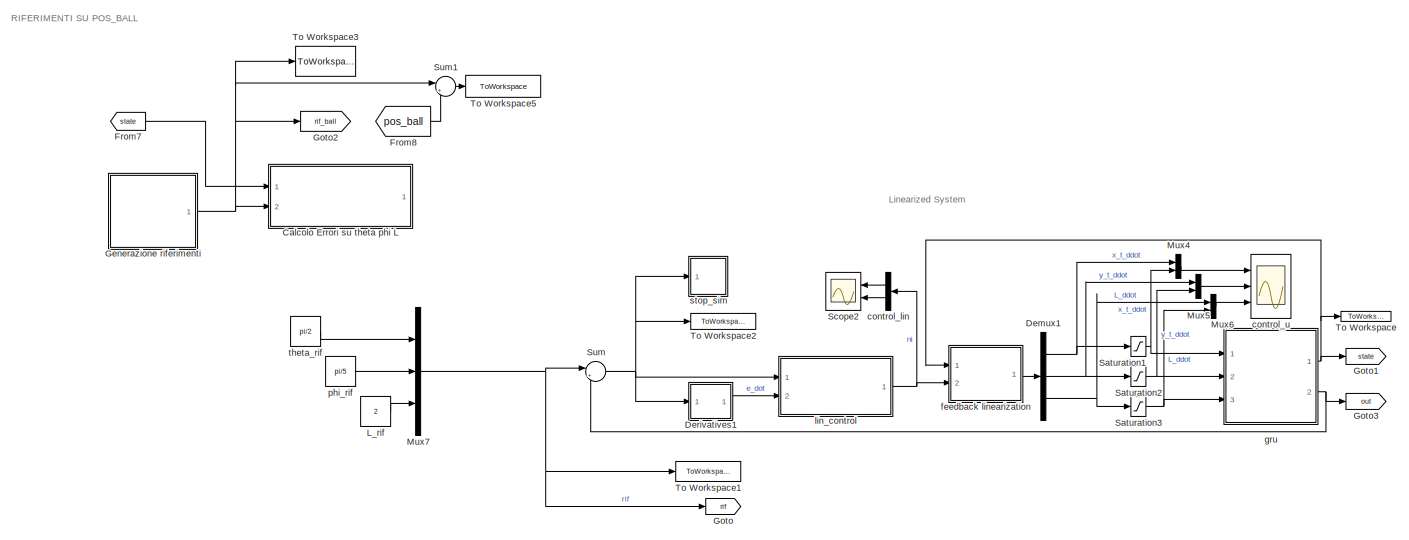
[diagram: root canvas - part 1/2, top left region]
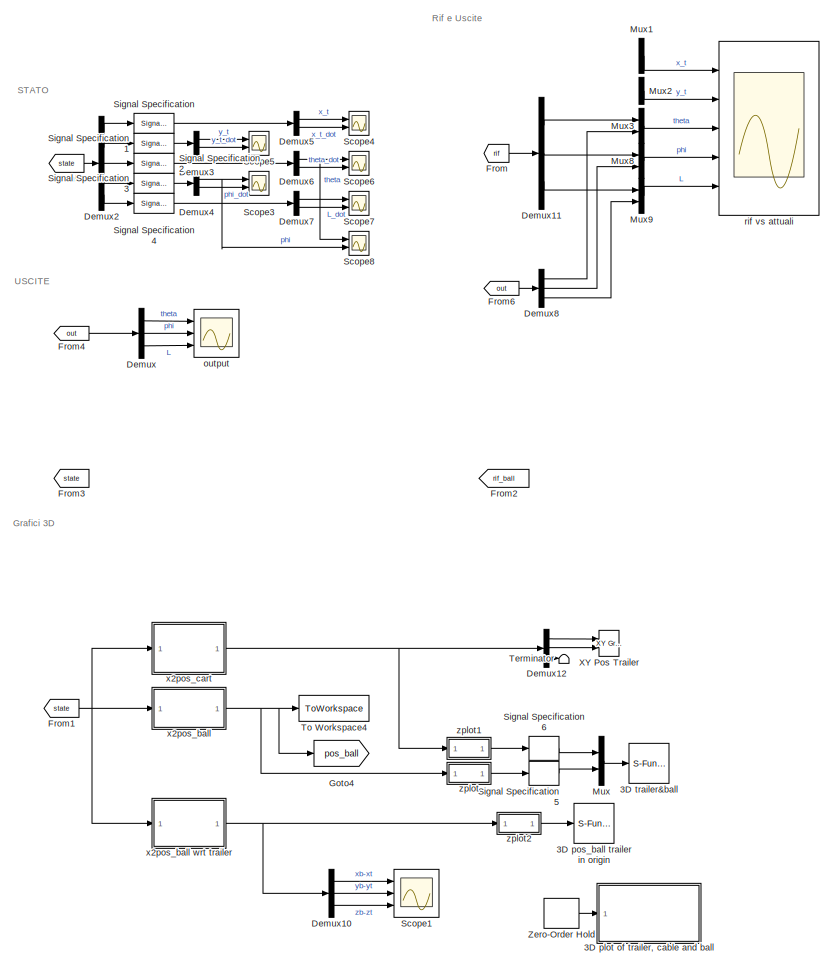
[diagram: root canvas - part 2/2, right side, full height]
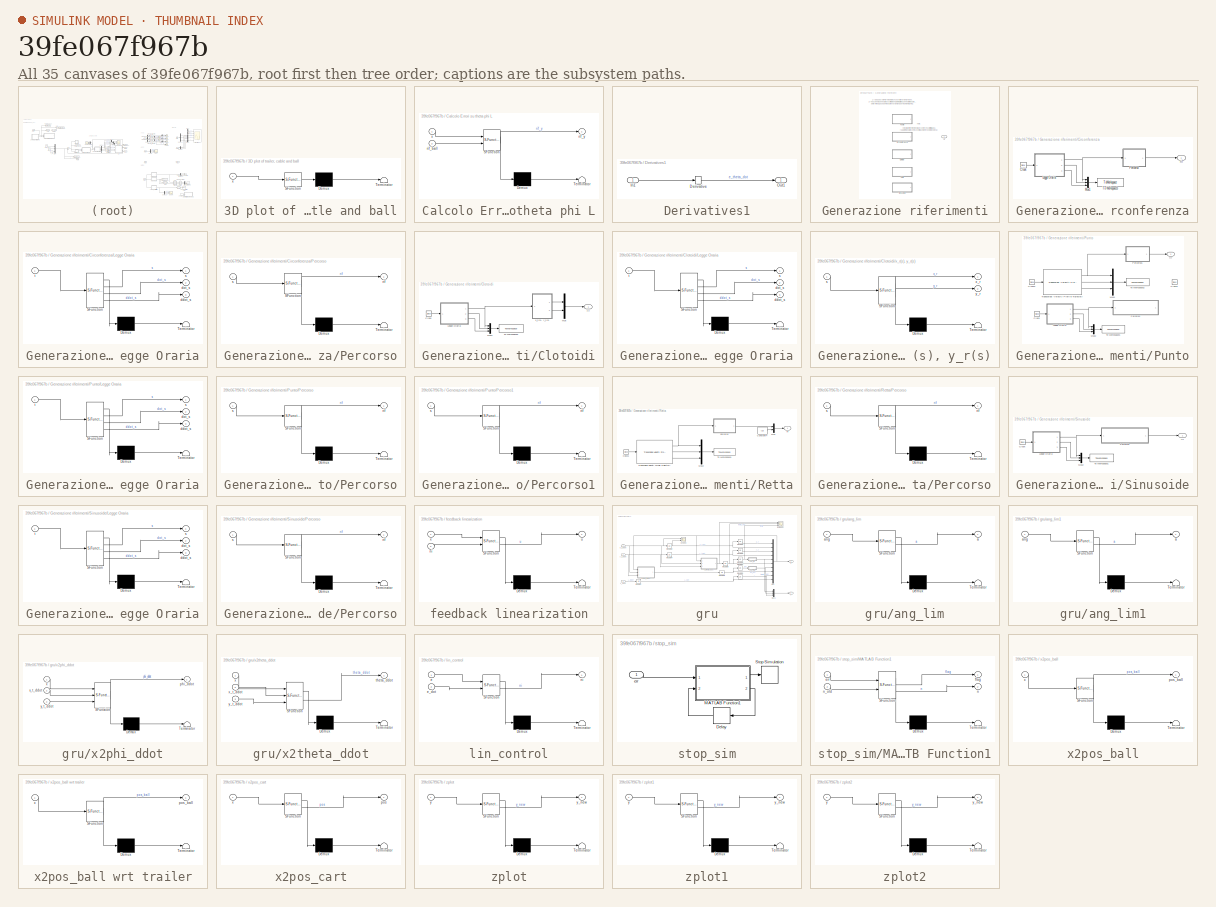
[diagram: thumbnail index - all 35 canvases of the model, root first then tree order]
MODEL slx_39fe067f967b
KIND model
CONFIG AbsTol = auto
CONFIG EnableMultiTasking = off
CONFIG FixedStep = 0.001
CONFIG InitFcn = init_gru
CONFIG MaxStep = 0.01
CONFIG MinStep = auto
CONFIG RelTol = 1e-3
CONFIG SampleTimeConstraint = Unconstrained
CONFIG Solver = FixedStepAuto
CONFIG SolverName = FixedStepAuto
CONFIG StartTime = 0.0
CONFIG StopFcn = %stop_gru
CONFIG StopTime = Inf
BLOCK [SubSystem] 3D plot of trailer, cable and ball
  Commented = on
  ErrorFcn = Stateflow.Translate.translate
  PermitHierarchicalResolution = ExplicitOnly
  Ports = [1]
  RequestExecContextInheritance = off
  SFBlockType = MATLAB Function
  TreatAsAtomicUnit = on
BLOCK [Demux] 3D plot of trailer, cable and ball/ Demux 
  Outputs = 1
  Ports = [1, 1]
BLOCK [S-Function] 3D plot of trailer, cable and ball/ SFunction 
  EnableBusSupport = on
  FunctionName = sf_sfun
  Parameters = z_t
  PortCounts = [1 1]
  Ports = [1, 1]
  SFcnIsStateOwnerBlock = off
  SFunctionDeploymentMode = off
  Tag = Stateflow S-Function 22
BLOCK [Terminator] 3D plot of trailer, cable and ball/ Terminator 
BLOCK [Inport] 3D plot of trailer, cable and ball/x
BLOCK [S-Function] 3D pos_ball trailer in origin
  CopyFcn = if exist('sfun3d','file'), sfun3d([],[],[],'CopyBlock'); end
  DeleteFcn = if exist('sfun3d','file'), sfun3d([],[],[],'DeleteBlock'); end
  EnableBusSupport = off
  FunctionName = sfun3d
  LoadFcn = if exist('sfun3d','file'), sfun3d([],[],[],'LoadBlock'); end
  NameChangeFcn = if exist('sfun3d','file'), sfun3d([],[],[],'NameChange'); end
  Parameters = ax,T,np,cp,gd,ls,mk,mx,hd,tb
  Ports = [1]
  SFcnIsStateOwnerBlock = off
  SFunctionDeploymentMode = off
BLOCK [S-Function] 3D trailer&ball
  CopyFcn = if exist('sfun3d','file'), sfun3d([],[],[],'CopyBlock'); end
  DeleteFcn = if exist('sfun3d','file'), sfun3d([],[],[],'DeleteBlock'); end
  EnableBusSupport = off
  FunctionName = sfun3d
  LoadFcn = if exist('sfun3d','file'), sfun3d([],[],[],'LoadBlock'); end
  NameChangeFcn = if exist('sfun3d','file'), sfun3d([],[],[],'NameChange'); end
  Parameters = ax,T,np,cp,gd,ls,mk,mx,hd,tb
  Ports = [1]
  SFcnIsStateOwnerBlock = off
  SFunctionDeploymentMode = off
BLOCK [SubSystem] Calcolo Errori su theta phi L
  ErrorFcn = Stateflow.Translate.translate
  PermitHierarchicalResolution = ExplicitOnly
  Ports = [2, 1]
  RequestExecContextInheritance = off
  SFBlockType = MATLAB Function
  TreatAsAtomicUnit = on
BLOCK [Demux] Calcolo Errori su theta phi L/ Demux 
  Outputs = 1
  Ports = [1, 1]
BLOCK [S-Function] Calcolo Errori su theta phi L/ SFunction 
  EnableBusSupport = on
  FunctionName = sf_sfun
  Parameters = z_t
  PortCounts = [2 2]
  Ports = [2, 2]
  SFcnIsStateOwnerBlock = off
  SFunctionDeploymentMode = off
  Tag = Stateflow S-Function 33
BLOCK [Terminator] Calcolo Errori su theta phi L/ Terminator 
BLOCK [Inport] Calcolo Errori su theta phi L/rif_ball
  Port = 2
BLOCK [Outport] Calcolo Errori su theta phi L/rif_y
BLOCK [Inport] Calcolo Errori su theta phi L/x
BLOCK [Demux] Demux
  Outputs = 3
  Ports = [1, 3]
BLOCK [Demux] Demux1
  Outputs = 3
  Ports = [1, 3]
BLOCK [Demux] Demux10
  Outputs = 3
  Ports = [1, 3]
BLOCK [Demux] Demux11
  Outputs = 3
  Ports = [1, 3]
BLOCK [Demux] Demux12
  Outputs = 3
  Ports = [1, 3]
BLOCK [Demux] Demux2
  Outputs = 5
  Ports = [1, 5]
BLOCK [Demux] Demux3
  Outputs = 2
  Ports = [1, 2]
BLOCK [Demux] Demux4
  Outputs = 2
  Ports = [1, 2]
BLOCK [Demux] Demux5
  Outputs = 2
  Ports = [1, 2]
BLOCK [Demux] Demux6
  Outputs = 2
  Ports = [1, 2]
BLOCK [Demux] Demux7
  Outputs = 2
  Ports = [1, 2]
BLOCK [Demux] Demux8
  Outputs = 3
  Ports = [1, 3]
BLOCK [SubSystem] Derivatives1
  Ports = [1, 1]
  RequestExecContextInheritance = off
BLOCK [Derivative] Derivatives1/Derivative
  CoefficientInTFapproximation = 1e10
BLOCK [Inport] Derivatives1/In1
BLOCK [Outport] Derivatives1/Out1
BLOCK [From] From
  GotoTag = rif
BLOCK [From] From1
  GotoTag = state
BLOCK [From] From2
  GotoTag = rif_ball
BLOCK [From] From3
  GotoTag = state
BLOCK [From] From4
  GotoTag = out
BLOCK [From] From5
  GotoTag = state
BLOCK [From] From6
  GotoTag = out
BLOCK [From] From7
  GotoTag = state
BLOCK [From] From8
  GotoTag = pos_ball
BLOCK [SubSystem] Generazione riferimenti
  Ports = [0, 1]
  RequestExecContextInheritance = off
  Variant = on
BLOCK [SubSystem] Generazione riferimenti/Circonferenza
  Ports = [0, 1]
  RequestExecContextInheritance = off
  VariantControl = Circonferenza
BLOCK [Clock] Generazione riferimenti/Circonferenza/Clock
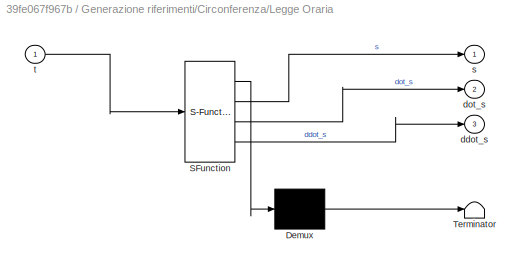
BLOCK [SubSystem] Generazione riferimenti/Circonferenza/Legge Oraria
  ErrorFcn = Stateflow.Translate.translate
  PermitHierarchicalResolution = ExplicitOnly
  Ports = [1, 3]
  RequestExecContextInheritance = off
  SFBlockType = MATLAB Function
  TreatAsAtomicUnit = on
BLOCK [Demux] Generazione riferimenti/Circonferenza/Legge Oraria/ Demux 
  Outputs = 1
  Ports = [1, 1]
BLOCK [S-Function] Generazione riferimenti/Circonferenza/Legge Oraria/ SFunction 
  EnableBusSupport = on
  FunctionName = sf_sfun
  Parameters = v_rif
  PortCounts = [1 4]
  Ports = [1, 4]
  SFcnIsStateOwnerBlock = off
  SFunctionDeploymentMode = off
  Tag = Stateflow S-Function 9
BLOCK [Terminator] Generazione riferimenti/Circonferenza/Legge Oraria/ Terminator 
BLOCK [Outport] Generazione riferimenti/Circonferenza/Legge Oraria/ddot_s
  Port = 3
BLOCK [Outport] Generazione riferimenti/Circonferenza/Legge Oraria/dot_s
  Port = 2
BLOCK [Outport] Generazione riferimenti/Circonferenza/Legge Oraria/s
BLOCK [Inport] Generazione riferimenti/Circonferenza/Legge Oraria/t
BLOCK [Mux] Generazione riferimenti/Circonferenza/Mux1
  DisplayOption = bar
  Inputs = 3
  Ports = [3, 1]
BLOCK [SubSystem] Generazione riferimenti/Circonferenza/Percorso
  ErrorFcn = Stateflow.Translate.translate
  PermitHierarchicalResolution = ExplicitOnly
  Ports = [1, 1]
  RequestExecContextInheritance = off
  SFBlockType = MATLAB Function
  TreatAsAtomicUnit = on
BLOCK [Demux] Generazione riferimenti/Circonferenza/Percorso/ Demux 
  Outputs = 1
  Ports = [1, 1]
BLOCK [S-Function] Generazione riferimenti/Circonferenza/Percorso/ SFunction 
  EnableBusSupport = on
  FunctionName = sf_sfun
  Parameters = centro,v_r
  PortCounts = [1 2]
  Ports = [1, 2]
  SFcnIsStateOwnerBlock = off
  SFunctionDeploymentMode = off
  Tag = Stateflow S-Function 10
BLOCK [Terminator] Generazione riferimenti/Circonferenza/Percorso/ Terminator 
BLOCK [Outport] Generazione riferimenti/Circonferenza/Percorso/rif
BLOCK [Inport] Generazione riferimenti/Circonferenza/Percorso/s
BLOCK [ToWorkspace] Generazione riferimenti/Circonferenza/To Workspace3
  FixptAsFi = on
  MaxDataPoints = inf
  Ports = [1]
  SampleTime = -1
  SaveFormat = Timeseries
  VariableName = curv_coord
BLOCK [Outport] Generazione riferimenti/Circonferenza/rif
BLOCK [SubSystem] Generazione riferimenti/Clotoidi
  Ports = [0, 1]
  RequestExecContextInheritance = off
  VariantControl = Clotoidi
BLOCK [Clock] Generazione riferimenti/Clotoidi/Clock
BLOCK [SubSystem] Generazione riferimenti/Clotoidi/Legge Oraria
  ErrorFcn = Stateflow.Translate.translate
  PermitHierarchicalResolution = ExplicitOnly
  Ports = [1, 3]
  RequestExecContextInheritance = off
  SFBlockType = MATLAB Function
  TreatAsAtomicUnit = on
BLOCK [Demux] Generazione riferimenti/Clotoidi/Legge Oraria/ Demux 
  Outputs = 1
  Ports = [1, 1]
BLOCK [S-Function] Generazione riferimenti/Clotoidi/Legge Oraria/ SFunction 
  EnableBusSupport = on
  FunctionName = sf_sfun
  Parameters = v_rif
  PortCounts = [1 4]
  Ports = [1, 4]
  SFcnIsStateOwnerBlock = off
  SFunctionDeploymentMode = off
  Tag = Stateflow S-Function 7
BLOCK [Terminator] Generazione riferimenti/Clotoidi/Legge Oraria/ Terminator 
BLOCK [Outport] Generazione riferimenti/Clotoidi/Legge Oraria/ddot_s
  Port = 3
BLOCK [Outport] Generazione riferimenti/Clotoidi/Legge Oraria/dot_s
  Port = 2
BLOCK [Outport] Generazione riferimenti/Clotoidi/Legge Oraria/s
BLOCK [Inport] Generazione riferimenti/Clotoidi/Legge Oraria/t
BLOCK [Mux] Generazione riferimenti/Clotoidi/Mux
  DisplayOption = bar
  Inputs = 2
  Ports = [2, 1]
BLOCK [Mux] Generazione riferimenti/Clotoidi/Mux1
  DisplayOption = bar
  Inputs = 3
  Ports = [3, 1]
BLOCK [ToWorkspace] Generazione riferimenti/Clotoidi/To Workspace3
  FixptAsFi = on
  MaxDataPoints = inf
  Ports = [1]
  SampleTime = -1
  SaveFormat = Timeseries
  VariableName = curv_coord
BLOCK [Outport] Generazione riferimenti/Clotoidi/rif
BLOCK [SubSystem] Generazione riferimenti/Clotoidi/x_r(s), y_r(s)
  ErrorFcn = Stateflow.Translate.translate
  PermitHierarchicalResolution = ExplicitOnly
  Ports = [1, 2]
  RequestExecContextInheritance = off
  SFBlockType = MATLAB Function
  TreatAsAtomicUnit = on
BLOCK [Demux] Generazione riferimenti/Clotoidi/x_r(s), y_r(s)/ Demux 
  Outputs = 1
  Ports = [1, 1]
BLOCK [S-Function] Generazione riferimenti/Clotoidi/x_r(s), y_r(s)/ SFunction 
  EnableBusSupport = on
  FunctionName = sf_sfun
  Parameters = Lsofar,Lsofarclot,Ltot,indexclot,n_p,theta_rette,xp,yp
  PortCounts = [1 3]
  Ports = [1, 3]
  SFcnIsStateOwnerBlock = off
  SFunctionDeploymentMode = off
  Tag = Stateflow S-Function 13
BLOCK [Terminator] Generazione riferimenti/Clotoidi/x_r(s), y_r(s)/ Terminator 
BLOCK [Inport] Generazione riferimenti/Clotoidi/x_r(s), y_r(s)/s
BLOCK [Outport] Generazione riferimenti/Clotoidi/x_r(s), y_r(s)/x_r
  VectorParamsAs1DForOutWhenUnconnected = off
BLOCK [Outport] Generazione riferimenti/Clotoidi/x_r(s), y_r(s)/y_r
  Port = 2
  VectorParamsAs1DForOutWhenUnconnected = off
BLOCK [SubSystem] Generazione riferimenti/Punto
  Ports = [0, 1]
  RequestExecContextInheritance = off
  VariantControl = Punto
BLOCK [Clock] Generazione riferimenti/Punto/Clock
  Commented = on
BLOCK [Clock] Generazione riferimenti/Punto/Clock1
  Commented = on
BLOCK [Clock] Generazione riferimenti/Punto/Clock2
BLOCK [SubSystem] Generazione riferimenti/Punto/Legge Oraria
  Commented = on
  ErrorFcn = Stateflow.Translate.translate
  PermitHierarchicalResolution = ExplicitOnly
  Ports = [1, 3]
  RequestExecContextInheritance = off
  SFBlockType = MATLAB Function
  TreatAsAtomicUnit = on
BLOCK [Demux] Generazione riferimenti/Punto/Legge Oraria/ Demux 
  Outputs = 1
  Ports = [1, 1]
BLOCK [S-Function] Generazione riferimenti/Punto/Legge Oraria/ SFunction 
  EnableBusSupport = on
  FunctionName = sf_sfun
  Parameters = v_rif
  PortCounts = [1 4]
  Ports = [1, 4]
  SFcnIsStateOwnerBlock = off
  SFunctionDeploymentMode = off
  Tag = Stateflow S-Function 3
BLOCK [Terminator] Generazione riferimenti/Punto/Legge Oraria/ Terminator 
BLOCK [Outport] Generazione riferimenti/Punto/Legge Oraria/ddot_s
  Port = 3
BLOCK [Outport] Generazione riferimenti/Punto/Legge Oraria/dot_s
  Port = 2
BLOCK [Outport] Generazione riferimenti/Punto/Legge Oraria/s
BLOCK [Inport] Generazione riferimenti/Punto/Legge Oraria/t
BLOCK [Mux] Generazione riferimenti/Punto/Mux1
  DisplayOption = bar
  Inputs = 3
  Ports = [3, 1]
BLOCK [Mux] Generazione riferimenti/Punto/Mux2
  Commented = on
  DisplayOption = bar
  Inputs = 3
  Ports = [3, 1]
BLOCK [SubSystem] Generazione riferimenti/Punto/Percorso
  Commented = on
  ErrorFcn = Stateflow.Translate.translate
  PermitHierarchicalResolution = ExplicitOnly
  Ports = [1, 1]
  RequestExecContextInheritance = off
  SFBlockType = MATLAB Function
  TreatAsAtomicUnit = on
BLOCK [Demux] Generazione riferimenti/Punto/Percorso/ Demux 
  Outputs = 1
  Ports = [1, 1]
BLOCK [S-Function] Generazione riferimenti/Punto/Percorso/ SFunction 
  EnableBusSupport = on
  FunctionName = sf_sfun
  Parameters = x_M_finale,x_M_iniziale,y_M_finale,y_M_iniziale
  PortCounts = [1 2]
  Ports = [1, 2]
  SFcnIsStateOwnerBlock = off
  SFunctionDeploymentMode = off
  Tag = Stateflow S-Function 6
BLOCK [Terminator] Generazione riferimenti/Punto/Percorso/ Terminator 
BLOCK [Outport] Generazione riferimenti/Punto/Percorso/rif
BLOCK [Inport] Generazione riferimenti/Punto/Percorso/s
BLOCK [SubSystem] Generazione riferimenti/Punto/Percorso1
  ErrorFcn = Stateflow.Translate.translate
  PermitHierarchicalResolution = ExplicitOnly
  Ports = [1, 1]
  RequestExecContextInheritance = off
  SFBlockType = MATLAB Function
  TreatAsAtomicUnit = on
BLOCK [Demux] Generazione riferimenti/Punto/Percorso1/ Demux 
  Outputs = 1
  Ports = [1, 1]
BLOCK [S-Function] Generazione riferimenti/Punto/Percorso1/ SFunction 
  EnableBusSupport = on
  FunctionName = sf_sfun
  Parameters = dir_retta,x_b_iniziale,y_b_iniziale,z_b_iniziale
  PortCounts = [1 2]
  Ports = [1, 2]
  SFcnIsStateOwnerBlock = off
  SFunctionDeploymentMode = off
  Tag = Stateflow S-Function 28
BLOCK [Terminator] Generazione riferimenti/Punto/Percorso1/ Terminator 
BLOCK [Outport] Generazione riferimenti/Punto/Percorso1/rif
BLOCK [Inport] Generazione riferimenti/Punto/Percorso1/s
BLOCK [ToWorkspace] Generazione riferimenti/Punto/To Workspace1
  Commented = on
  FixptAsFi = on
  MaxDataPoints = inf
  Ports = [1]
  SampleTime = -1
  SaveFormat = Timeseries
  VariableName = curv_coord
BLOCK [ToWorkspace] Generazione riferimenti/Punto/To Workspace2
  FixptAsFi = on
  MaxDataPoints = inf
  Ports = [1]
  SampleTime = -1
  SaveFormat = Timeseries
  VariableName = curv_coord1
BLOCK [Reference] Generazione riferimenti/Punto/Trapezoidal Velocity Profile Trajectory  REF=robotcorelib/Trapezoidal Velocity Profile Trajectory
  Ports = [1, 3]
  SourceBlock = robotcorelib/Trapezoidal Velocity Profile Trajectory
  SourceProductBaseCode = NV,RO,RR
  SourceType = robotics.slcore.internal.block.TrapVelTrajSys
BLOCK [Outport] Generazione riferimenti/Punto/rif
BLOCK [SubSystem] Generazione riferimenti/Retta
  Ports = [0, 1]
  RequestExecContextInheritance = off
  VariantControl = Retta
BLOCK [Clock] Generazione riferimenti/Retta/Clock1
BLOCK [Constant] Generazione riferimenti/Retta/Constant4
  Value = [2]
BLOCK [Mux] Generazione riferimenti/Retta/Mux
  DisplayOption = bar
  Inputs = 2
  Ports = [2, 1]
BLOCK [Mux] Generazione riferimenti/Retta/Mux2
  DisplayOption = bar
  Inputs = 3
  Ports = [3, 1]
BLOCK [SubSystem] Generazione riferimenti/Retta/Percorso
  ErrorFcn = Stateflow.Translate.translate
  PermitHierarchicalResolution = ExplicitOnly
  Ports = [1, 1]
  RequestExecContextInheritance = off
  SFBlockType = MATLAB Function
  TreatAsAtomicUnit = on
BLOCK [Demux] Generazione riferimenti/Retta/Percorso/ Demux 
  Outputs = 1
  Ports = [1, 1]
BLOCK [S-Function] Generazione riferimenti/Retta/Percorso/ SFunction 
  EnableBusSupport = on
  FunctionName = sf_sfun
  Parameters = dir_retta,x_b_iniziale,y_b_iniziale
  PortCounts = [1 2]
  Ports = [1, 2]
  SFcnIsStateOwnerBlock = off
  SFunctionDeploymentMode = off
  Tag = Stateflow S-Function 12
BLOCK [Terminator] Generazione riferimenti/Retta/Percorso/ Terminator 
BLOCK [Outport] Generazione riferimenti/Retta/Percorso/rif
BLOCK [Inport] Generazione riferimenti/Retta/Percorso/s
BLOCK [ToWorkspace] Generazione riferimenti/Retta/To Workspace1
  FixptAsFi = on
  MaxDataPoints = inf
  Ports = [1]
  SampleTime = -1
  SaveFormat = Timeseries
  VariableName = curv_coord
BLOCK [Reference] Generazione riferimenti/Retta/Trapezoidal Velocity Profile Trajectory  REF=robotcorelib/Trapezoidal Velocity Profile Trajectory
  Ports = [1, 3]
  SourceBlock = robotcorelib/Trapezoidal Velocity Profile Trajectory
  SourceProductBaseCode = NV,RO,RR
  SourceType = robotics.slcore.internal.block.TrapVelTrajSys
BLOCK [Outport] Generazione riferimenti/Retta/rif
BLOCK [SubSystem] Generazione riferimenti/Sinusoide
  Ports = [0, 1]
  RequestExecContextInheritance = off
  VariantControl = Sinusoide
BLOCK [Clock] Generazione riferimenti/Sinusoide/Clock
BLOCK [SubSystem] Generazione riferimenti/Sinusoide/Legge Oraria
  ErrorFcn = Stateflow.Translate.translate
  PermitHierarchicalResolution = ExplicitOnly
  Ports = [1, 3]
  RequestExecContextInheritance = off
  SFBlockType = MATLAB Function
  TreatAsAtomicUnit = on
BLOCK [Demux] Generazione riferimenti/Sinusoide/Legge Oraria/ Demux 
  Outputs = 1
  Ports = [1, 1]
BLOCK [S-Function] Generazione riferimenti/Sinusoide/Legge Oraria/ SFunction 
  EnableBusSupport = on
  FunctionName = sf_sfun
  Parameters = v_rif
  PortCounts = [1 4]
  Ports = [1, 4]
  SFcnIsStateOwnerBlock = off
  SFunctionDeploymentMode = off
  Tag = Stateflow S-Function 14
BLOCK [Terminator] Generazione riferimenti/Sinusoide/Legge Oraria/ Terminator 
BLOCK [Outport] Generazione riferimenti/Sinusoide/Legge Oraria/ddot_s
  Port = 3
BLOCK [Outport] Generazione riferimenti/Sinusoide/Legge Oraria/dot_s
  Port = 2
BLOCK [Outport] Generazione riferimenti/Sinusoide/Legge Oraria/s
BLOCK [Inport] Generazione riferimenti/Sinusoide/Legge Oraria/t
BLOCK [Mux] Generazione riferimenti/Sinusoide/Mux2
  DisplayOption = bar
  Inputs = 3
  Ports = [3, 1]
BLOCK [SubSystem] Generazione riferimenti/Sinusoide/Percorso
  ErrorFcn = Stateflow.Translate.translate
  PermitHierarchicalResolution = ExplicitOnly
  Ports = [1, 1]
  RequestExecContextInheritance = off
  SFBlockType = MATLAB Function
  TreatAsAtomicUnit = on
BLOCK [Demux] Generazione riferimenti/Sinusoide/Percorso/ Demux 
  Outputs = 1
  Ports = [1, 1]
BLOCK [S-Function] Generazione riferimenti/Sinusoide/Percorso/ SFunction 
  EnableBusSupport = on
  FunctionName = sf_sfun
  Parameters = dir_retta
  PortCounts = [1 2]
  Ports = [1, 2]
  SFcnIsStateOwnerBlock = off
  SFunctionDeploymentMode = off
  Tag = Stateflow S-Function 15
BLOCK [Terminator] Generazione riferimenti/Sinusoide/Percorso/ Terminator 
BLOCK [Outport] Generazione riferimenti/Sinusoide/Percorso/rif
BLOCK [Inport] Generazione riferimenti/Sinusoide/Percorso/s
BLOCK [ToWorkspace] Generazione riferimenti/Sinusoide/To Workspace1
  FixptAsFi = on
  MaxDataPoints = inf
  Ports = [1]
  SampleTime = -1
  SaveFormat = Timeseries
  VariableName = curv_coord
BLOCK [Outport] Generazione riferimenti/Sinusoide/rif
BLOCK [Outport] Generazione riferimenti/rif
BLOCK [Goto] Goto
  GotoTag = rif
BLOCK [Goto] Goto1
  GotoTag = state
BLOCK [Goto] Goto2
  GotoTag = rif_ball
BLOCK [Goto] Goto3
  GotoTag = out
BLOCK [Goto] Goto4
  GotoTag = pos_ball
BLOCK [Constant] L_rif
  Value = 2
BLOCK [Mux] Mux
  DisplayOption = bar
  Inputs = 2
  Ports = [2, 1]
BLOCK [Mux] Mux1
  DisplayOption = bar
  Inputs = 2
  Ports = [2, 1]
BLOCK [Mux] Mux2
  DisplayOption = bar
  Inputs = 2
  Ports = [2, 1]
BLOCK [Mux] Mux3
  DisplayOption = bar
  Inputs = 2
  Ports = [2, 1]
BLOCK [Mux] Mux4
  DisplayOption = bar
  Inputs = 2
  Ports = [2, 1]
BLOCK [Mux] Mux5
  DisplayOption = bar
  Inputs = 2
  Ports = [2, 1]
BLOCK [Mux] Mux6
  DisplayOption = bar
  Inputs = 2
  Ports = [2, 1]
BLOCK [Mux] Mux7
  DisplayOption = bar
  Inputs = 3
  Ports = [3, 1]
BLOCK [Mux] Mux8
  DisplayOption = bar
  Inputs = 2
  Ports = [2, 1]
BLOCK [Mux] Mux9
  DisplayOption = bar
  Inputs = 2
  Ports = [2, 1]
BLOCK [Saturate] Saturation1
  LowerLimit = -x_t_ddot_sat
  UpperLimit = x_t_ddot_sat
BLOCK [Saturate] Saturation2
  LowerLimit = -y_t_ddot_sat
  UpperLimit = y_t_ddot_sat
BLOCK [Saturate] Saturation3
  LowerLimit = -L_ddot_sat
  UpperLimit = L_ddot_sat
BLOCK [Scope] Scope1
  Floating = off
  NumInputPorts = 3
  Ports = [3]
  ScopeSpecificationString = Simulink.scopes.TimeScopeBlockCfg('CurrentConfiguration', extmgr.ConfigurationSet(extmgr.Configuration('Core','General UI',true),extmgr.Configuration('Core','Source UI',true),extmgr.Configuration('Sources','WiredSimulink',true,'DataLoggingVariableName','ScopeData4'),extmgr.Configuration('Visuals','Time Domain',true,'SerializedDisplays',{struct('MinYLimReal','-344.32507','MaxYLimReal','337.86546','...<+1492ch>
BLOCK [Scope] Scope2
  Floating = off
  NumInputPorts = 2
  Ports = [2]
  ScopeSpecificationString = Simulink.scopes.TimeScopeBlockCfg('CurrentConfiguration', extmgr.ConfigurationSet(extmgr.Configuration('Core','General UI',true),extmgr.Configuration('Core','Source UI',true),extmgr.Configuration('Sources','WiredSimulink',true,'DataLoggingVariableName','ScopeData3'),extmgr.Configuration('Visuals','Time Domain',true,'SerializedDisplays',{struct('MinYLimReal','-0.64768','MaxYLimReal','0.59314','YLab...<+1505ch>
BLOCK [Scope] Scope3
  Floating = off
  NumInputPorts = 2
  Ports = [2]
  ScopeSpecificationString = Simulink.scopes.TimeScopeBlockCfg('CurrentConfiguration', extmgr.ConfigurationSet(extmgr.Configuration('Core','General UI',true),extmgr.Configuration('Core','Source UI',true),extmgr.Configuration('Sources','WiredSimulink',true,'DataLoggingVariableName','ScopeData2'),extmgr.Configuration('Visuals','Time Domain',true,'SerializedDisplays',{struct('MinYLimReal','0.03071','MaxYLimReal','0.03213','YLabe...<+1414ch>
BLOCK [Scope] Scope4
  Floating = off
  NumInputPorts = 2
  Ports = [2]
  ScopeSpecificationString = Simulink.scopes.TimeScopeBlockCfg('CurrentConfiguration', extmgr.ConfigurationSet(extmgr.Configuration('Core','General UI',true),extmgr.Configuration('Core','Source UI',true),extmgr.Configuration('Sources','WiredSimulink',true,'DataLoggingVariableName','ScopeData3'),extmgr.Configuration('Visuals','Time Domain',true,'SerializedDisplays',{struct('MinYLimReal','-1733.10745','MaxYLimReal','265.35823',...<+1491ch>
BLOCK [Scope] Scope5
  Floating = off
  NumInputPorts = 2
  Ports = [2]
  ScopeSpecificationString = Simulink.scopes.TimeScopeBlockCfg('CurrentConfiguration', extmgr.ConfigurationSet(extmgr.Configuration('Core','General UI',true),extmgr.Configuration('Core','Source UI',true),extmgr.Configuration('Sources','WiredSimulink',true,'DataLoggingVariableName','ScopeData5'),extmgr.Configuration('Visuals','Time Domain',true,'SerializedDisplays',{struct('MinYLimReal','-237.9248','MaxYLimReal','281.48943','Y...<+1409ch>
BLOCK [Scope] Scope6
  Floating = off
  NumInputPorts = 2
  Ports = [2]
  ScopeSpecificationString = Simulink.scopes.TimeScopeBlockCfg('CurrentConfiguration', extmgr.ConfigurationSet(extmgr.Configuration('Core','General UI',true),extmgr.Configuration('Core','Source UI',true),extmgr.Configuration('Sources','WiredSimulink',true,'DataLoggingVariableName','ScopeData4'),extmgr.Configuration('Visuals','Time Domain',true,'SerializedDisplays',{struct('MinYLimReal','-0.06546','MaxYLimReal','0.58907','YLab...<+1424ch>
BLOCK [Scope] Scope7
  Floating = off
  NumInputPorts = 2
  Ports = [2]
  ScopeSpecificationString = Simulink.scopes.TimeScopeBlockCfg('CurrentConfiguration', extmgr.ConfigurationSet(extmgr.Configuration('Core','General UI',true),extmgr.Configuration('Core','Source UI',true),extmgr.Configuration('Sources','WiredSimulink',true,'DataLoggingVariableName','ScopeData6'),extmgr.Configuration('Visuals','Time Domain',true,'SerializedDisplays',{struct('MinYLimReal','-0.25','MaxYLimReal','2.25','YLabelReal...<+1431ch>
BLOCK [Scope] Scope8
  Floating = off
  NumInputPorts = 2
  Ports = [2]
  ScopeSpecificationString = Simulink.scopes.TimeScopeBlockCfg('CurrentConfiguration', extmgr.ConfigurationSet(extmgr.Configuration('Core','General UI',true),extmgr.Configuration('Core','Source UI',true),extmgr.Configuration('Sources','WiredSimulink',true,'DataLoggingVariableName','ScopeData3'),extmgr.Configuration('Visuals','Time Domain',true,'SerializedDisplays',{struct('MinYLimReal','-2.1594','MaxYLimReal','19.44796','YLab...<+1793ch>
BLOCK [SignalSpecification] Signal Specification
  Dimensions = [2]
BLOCK [SignalSpecification] Signal Specification1
  Dimensions = [2]
BLOCK [SignalSpecification] Signal Specification2
  Dimensions = [2]
BLOCK [SignalSpecification] Signal Specification3
  Dimensions = [2]
BLOCK [SignalSpecification] Signal Specification4
  Dimensions = [2]
BLOCK [SignalSpecification] Signal Specification5
  Dimensions = 3
BLOCK [SignalSpecification] Signal Specification6
  Dimensions = 3
BLOCK [Sum] Sum
  Inputs = |+-
  Ports = [2, 1]
BLOCK [Sum] Sum1
  Inputs = |+-
  Ports = [2, 1]
BLOCK [Terminator] Terminator
BLOCK [ToWorkspace] To Workspace
  FixptAsFi = on
  MaxDataPoints = inf
  Ports = [1]
  SampleTime = -1
  SaveFormat = Timeseries
  VariableName = state_ts
BLOCK [ToWorkspace] To Workspace1
  FixptAsFi = on
  MaxDataPoints = inf
  Ports = [1]
  SampleTime = -1
  SaveFormat = Timeseries
  VariableName = rif_interno
BLOCK [ToWorkspace] To Workspace2
  FixptAsFi = on
  MaxDataPoints = inf
  Ports = [1]
  SampleTime = -1
  SaveFormat = Timeseries
  VariableName = err_interno
BLOCK [ToWorkspace] To Workspace3
  FixptAsFi = on
  MaxDataPoints = inf
  Ports = [1]
  SampleTime = -1
  SaveFormat = Timeseries
  VariableName = rif_ball
BLOCK [ToWorkspace] To Workspace4
  FixptAsFi = on
  MaxDataPoints = inf
  Ports = [1]
  SampleTime = -1
  SaveFormat = Timeseries
  VariableName = pos_ball
BLOCK [ToWorkspace] To Workspace5
  FixptAsFi = on
  MaxDataPoints = inf
  Ports = [1]
  SampleTime = -1
  SaveFormat = Timeseries
  VariableName = err_ball
BLOCK [Reference] XY Pos Trailer  REF=simulink/Sinks/XY Graph
  Ports = [2]
  SourceBlock = simulink/Sinks/XY Graph
  SourceProductBaseCode = SL
  SourceType = XY scope.
BLOCK [ZeroOrderHold] Zero-Order Hold
  Commented = on
  SampleTime = 1/10
BLOCK [Demux] control_lin
  Outputs = 2
  Ports = [1, 2]
BLOCK [Scope] control_u
  Floating = off
  NameLocation = top
  NumInputPorts = 3
  Ports = [3]
  ScopeSpecificationString = Simulink.scopes.TimeScopeBlockCfg('CurrentConfiguration', extmgr.ConfigurationSet(extmgr.Configuration('Core','General UI',true),extmgr.Configuration('Core','Source UI',true),extmgr.Configuration('Sources','WiredSimulink',true,'DataLoggingVariableName','ScopeData2'),extmgr.Configuration('Visuals','Time Domain',true,'SerializedDisplays',{struct('MinYLimReal','-6.60494','MaxYLimReal','4.9573','YLabe...<+3220ch>
BLOCK [SubSystem] feedback linearization
  ErrorFcn = Stateflow.Translate.translate
  PermitHierarchicalResolution = ExplicitOnly
  Ports = [2, 1]
  RequestExecContextInheritance = off
  SFBlockType = MATLAB Function
  TreatAsAtomicUnit = on
BLOCK [Demux] feedback linearization/ Demux 
  Outputs = 1
  Ports = [1, 1]
BLOCK [S-Function] feedback linearization/ SFunction 
  EnableBusSupport = on
  FunctionName = sf_sfun
  Parameters = b_smorza,g
  PortCounts = [2 2]
  Ports = [2, 2]
  SFcnIsStateOwnerBlock = off
  SFunctionDeploymentMode = off
  Tag = Stateflow S-Function 2
BLOCK [Terminator] feedback linearization/ Terminator 
BLOCK [Inport] feedback linearization/ni
  Port = 2
BLOCK [Outport] feedback linearization/u
BLOCK [Inport] feedback linearization/x
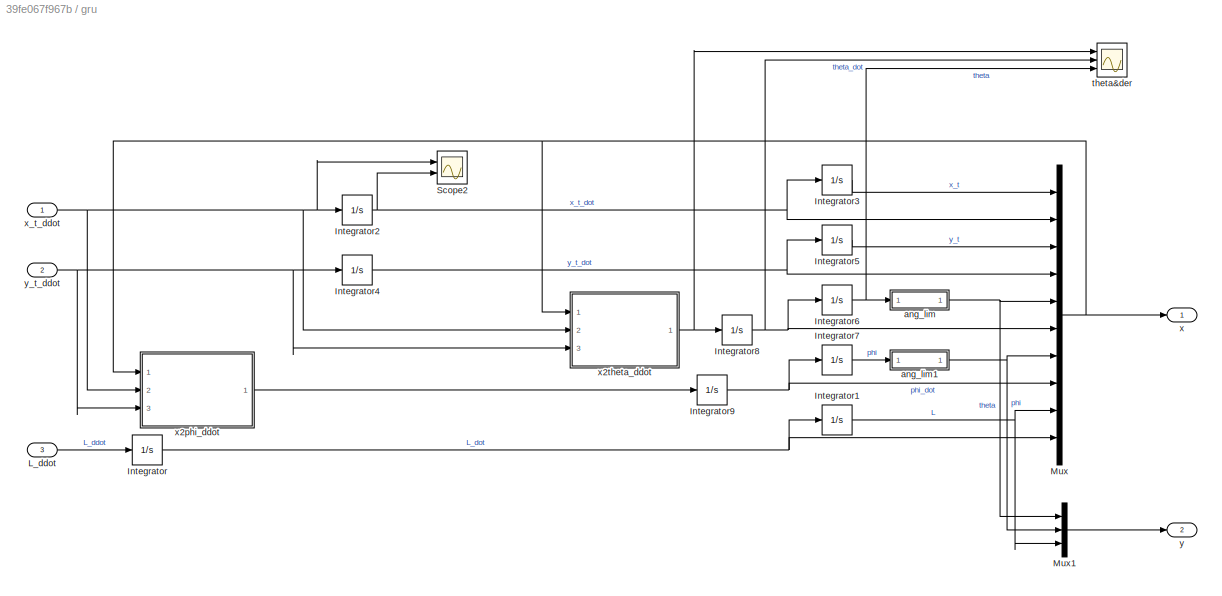
BLOCK [SubSystem] gru
  Ports = [3, 2]
  RequestExecContextInheritance = off
BLOCK [Integrator] gru/Integrator
  InitialCondition = L_dot_iniziale
  Ports = [1, 1]
BLOCK [Integrator] gru/Integrator1
  InitialCondition = L_iniziale
  LimitOutput = on
  LowerSaturationLimit = Lmin
  Ports = [1, 1]
  UpperSaturationLimit = Lmax
BLOCK [Integrator] gru/Integrator2
  InitialCondition = x_t_dot_iniziale
  LowerSaturationLimit = -1e3
  Ports = [1, 1]
  UpperSaturationLimit = 1e3
BLOCK [Integrator] gru/Integrator3
  InitialCondition = x_t_iniziale
  LimitOutput = on
  LowerSaturationLimit = xmin_workplace
  Ports = [1, 1]
  UpperSaturationLimit = xmax_workplace
BLOCK [Integrator] gru/Integrator4
  InitialCondition = y_t_dot_iniziale
  Ports = [1, 1]
BLOCK [Integrator] gru/Integrator5
  InitialCondition = y_t_iniziale
  LimitOutput = on
  LowerSaturationLimit = ymin_workplace
  Ports = [1, 1]
  UpperSaturationLimit = ymax_workplace
BLOCK [Integrator] gru/Integrator6
  InitialCondition = theta_iniziale
  Ports = [1, 1]
BLOCK [Integrator] gru/Integrator7
  InitialCondition = phi_iniziale
  Ports = [1, 1]
BLOCK [Integrator] gru/Integrator8
  InitialCondition = theta_dot_iniziale
  Ports = [1, 1]
BLOCK [Integrator] gru/Integrator9
  InitialCondition = phi_dot_iniziale
  Ports = [1, 1]
BLOCK [Inport] gru/L_ddot
  Port = 3
BLOCK [Mux] gru/Mux
  DisplayOption = bar
  Inputs = 10
  Ports = [10, 1]
BLOCK [Mux] gru/Mux1
  DisplayOption = bar
  Inputs = 3
  Ports = [3, 1]
BLOCK [Scope] gru/Scope2
  Floating = off
  NumInputPorts = 2
  Ports = [2]
  ScopeSpecificationString = Simulink.scopes.TimeScopeBlockCfg('CurrentConfiguration', extmgr.ConfigurationSet(extmgr.Configuration('Core','General UI',true),extmgr.Configuration('Core','Source UI',true),extmgr.Configuration('Sources','WiredSimulink',true,'DataLoggingVariableName','ScopeData1'),extmgr.Configuration('Visuals','Time Domain',true,'SerializedDisplays',{struct('MinYLimReal','-1.00000','MaxYLimReal','1.00000','YLab...<+1413ch>
BLOCK [SubSystem] gru/ang_lim
  Commented = through
  ErrorFcn = Stateflow.Translate.translate
  PermitHierarchicalResolution = ExplicitOnly
  Ports = [1, 1]
  RequestExecContextInheritance = off
  SFBlockType = MATLAB Function
  TreatAsAtomicUnit = on
BLOCK [Demux] gru/ang_lim/ Demux 
  Outputs = 1
  Ports = [1, 1]
BLOCK [S-Function] gru/ang_lim/ SFunction 
  EnableBusSupport = on
  FunctionName = sf_sfun
  PortCounts = [1 2]
  Ports = [1, 2]
  SFcnIsStateOwnerBlock = off
  SFunctionDeploymentMode = off
  Tag = Stateflow S-Function 18
BLOCK [Terminator] gru/ang_lim/ Terminator 
BLOCK [Outport] gru/ang_lim/a
BLOCK [Inport] gru/ang_lim/ang
BLOCK [SubSystem] gru/ang_lim1
  Commented = through
  ErrorFcn = Stateflow.Translate.translate
  PermitHierarchicalResolution = ExplicitOnly
  Ports = [1, 1]
  RequestExecContextInheritance = off
  SFBlockType = MATLAB Function
  TreatAsAtomicUnit = on
BLOCK [Demux] gru/ang_lim1/ Demux 
  Outputs = 1
  Ports = [1, 1]
BLOCK [S-Function] gru/ang_lim1/ SFunction 
  EnableBusSupport = on
  FunctionName = sf_sfun
  PortCounts = [1 2]
  Ports = [1, 2]
  SFcnIsStateOwnerBlock = off
  SFunctionDeploymentMode = off
  Tag = Stateflow S-Function 19
BLOCK [Terminator] gru/ang_lim1/ Terminator 
BLOCK [Outport] gru/ang_lim1/a
BLOCK [Inport] gru/ang_lim1/ang
BLOCK [Scope] gru/theta&der
  Floating = off
  NumInputPorts = 3
  Ports = [3]
  ScopeSpecificationString = Simulink.scopes.TimeScopeBlockCfg('CurrentConfiguration', extmgr.ConfigurationSet(extmgr.Configuration('Core','General UI',true),extmgr.Configuration('Core','Source UI',true),extmgr.Configuration('Sources','WiredSimulink',true,'DataLoggingVariableName','ScopeData2'),extmgr.Configuration('Visuals','Time Domain',true,'SerializedDisplays',{struct('MinYLimReal','-0.03634','MaxYLimReal','0.0434','YLabe...<+1428ch>
BLOCK [Outport] gru/x
BLOCK [SubSystem] gru/x2phi_ddot
  ErrorFcn = Stateflow.Translate.translate
  PermitHierarchicalResolution = ExplicitOnly
  Ports = [3, 1]
  RequestExecContextInheritance = off
  SFBlockType = MATLAB Function
  TreatAsAtomicUnit = on
BLOCK [Demux] gru/x2phi_ddot/ Demux 
  Outputs = 1
  Ports = [1, 1]
BLOCK [S-Function] gru/x2phi_ddot/ SFunction 
  EnableBusSupport = on
  FunctionName = sf_sfun
  PortCounts = [3 2]
  Ports = [3, 2]
  SFcnIsStateOwnerBlock = off
  SFunctionDeploymentMode = off
  Tag = Stateflow S-Function 8
BLOCK [Terminator] gru/x2phi_ddot/ Terminator 
BLOCK [Outport] gru/x2phi_ddot/phi_ddot
BLOCK [Inport] gru/x2phi_ddot/x
BLOCK [Inport] gru/x2phi_ddot/x_t_ddot
  Port = 2
BLOCK [Inport] gru/x2phi_ddot/y_t_ddot
  Port = 3
BLOCK [SubSystem] gru/x2theta_ddot
  ErrorFcn = Stateflow.Translate.translate
  PermitHierarchicalResolution = ExplicitOnly
  Ports = [3, 1]
  RequestExecContextInheritance = off
  SFBlockType = MATLAB Function
  TreatAsAtomicUnit = on
BLOCK [Demux] gru/x2theta_ddot/ Demux 
  Outputs = 1
  Ports = [1, 1]
BLOCK [S-Function] gru/x2theta_ddot/ SFunction 
  EnableBusSupport = on
  FunctionName = sf_sfun
  Parameters = b_smorza,g
  PortCounts = [3 2]
  Ports = [3, 2]
  SFcnIsStateOwnerBlock = off
  SFunctionDeploymentMode = off
  Tag = Stateflow S-Function 4
BLOCK [Terminator] gru/x2theta_ddot/ Terminator 
BLOCK [Outport] gru/x2theta_ddot/theta_ddot
BLOCK [Inport] gru/x2theta_ddot/x
BLOCK [Inport] gru/x2theta_ddot/x_t_ddot
  Port = 2
BLOCK [Inport] gru/x2theta_ddot/y_t_ddot
  Port = 3
BLOCK [Inport] gru/x_t_ddot
BLOCK [Outport] gru/y
  Port = 2
BLOCK [Inport] gru/y_t_ddot
  Port = 2
BLOCK [SubSystem] lin_control
  ErrorFcn = Stateflow.Translate.translate
  PermitHierarchicalResolution = ExplicitOnly
  Ports = [2, 1]
  RequestExecContextInheritance = off
  SFBlockType = MATLAB Function
  TreatAsAtomicUnit = on
BLOCK [Demux] lin_control/ Demux 
  Outputs = 1
  Ports = [1, 1]
BLOCK [S-Function] lin_control/ SFunction 
  EnableBusSupport = on
  FunctionName = sf_sfun
  Parameters = K1,K2
  PortCounts = [2 2]
  Ports = [2, 2]
  SFcnIsStateOwnerBlock = off
  SFunctionDeploymentMode = off
  Tag = Stateflow S-Function 1
BLOCK [Terminator] lin_control/ Terminator 
BLOCK [Inport] lin_control/e
BLOCK [Inport] lin_control/e_dot
  Port = 2
BLOCK [Outport] lin_control/ni
BLOCK [Scope] output
  Floating = off
  NumInputPorts = 3
  Ports = [3]
  ScopeSpecificationString = Simulink.scopes.TimeScopeBlockCfg('CurrentConfiguration', extmgr.ConfigurationSet(extmgr.Configuration('Core','General UI',true),extmgr.Configuration('Core','Source UI',true),extmgr.Configuration('Sources','WiredSimulink',true,'DataLoggingVariableName','ScopeData3'),extmgr.Configuration('Visuals','Time Domain',true,'SerializedDisplays',{struct('MinYLimReal','-0.28338','MaxYLimReal','2.55219','YLab...<+1399ch>
BLOCK [Constant] phi_rif
  Value = pi/5
BLOCK [Scope] rif vs attuali
  Floating = off
  NumInputPorts = 5
  Ports = [5]
  ScopeSpecificationString = Simulink.scopes.TimeScopeBlockCfg('CurrentConfiguration', extmgr.ConfigurationSet(extmgr.Configuration('Core','General UI',true),extmgr.Configuration('Core','Source UI',true),extmgr.Configuration('Sources','WiredSimulink',true,'DataLoggingVariableName','ScopeData6'),extmgr.Configuration('Visuals','Time Domain',true,'SerializedDisplays',{struct('MinYLimReal','-1.00000','MaxYLimReal','1.00000','YLab...<+6565ch>
BLOCK [SubSystem] stop_sim
  Commented = on
  Ports = [1]
  RequestExecContextInheritance = off
BLOCK [Delay] stop_sim/Delay
  DelayLength = 1
  InputPortMap = u0
  Ports = [1, 1]
BLOCK [SubSystem] stop_sim/MATLAB Function1
  ErrorFcn = Stateflow.Translate.translate
  PermitHierarchicalResolution = ExplicitOnly
  Ports = [2, 2]
  RequestExecContextInheritance = off
  SFBlockType = MATLAB Function
  TreatAsAtomicUnit = on
BLOCK [Demux] stop_sim/MATLAB Function1/ Demux 
  Outputs = 1
  Ports = [1, 1]
BLOCK [S-Function] stop_sim/MATLAB Function1/ SFunction 
  EnableBusSupport = on
  FunctionName = sf_sfun
  Parameters = threshold
  PortCounts = [2 3]
  Ports = [2, 3]
  SFcnIsStateOwnerBlock = off
  SFunctionDeploymentMode = off
  Tag = Stateflow S-Function 5
BLOCK [Terminator] stop_sim/MATLAB Function1/ Terminator 
BLOCK [Inport] stop_sim/MATLAB Function1/err
BLOCK [Outport] stop_sim/MATLAB Function1/flag
BLOCK [Outport] stop_sim/MATLAB Function1/n
  Port = 2
BLOCK [Inport] stop_sim/MATLAB Function1/n_old
  Port = 2
BLOCK [Stop] stop_sim/Stop Simulation
BLOCK [Inport] stop_sim/err
BLOCK [Constant] theta_rif
  Value = pi/2
BLOCK [SubSystem] x2pos_ball
  ErrorFcn = Stateflow.Translate.translate
  PermitHierarchicalResolution = ExplicitOnly
  Ports = [1, 1]
  RequestExecContextInheritance = off
  SFBlockType = MATLAB Function
  TreatAsAtomicUnit = on
BLOCK [SubSystem] x2pos_ball wrt trailer
  ErrorFcn = Stateflow.Translate.translate
  PermitHierarchicalResolution = ExplicitOnly
  Ports = [1, 1]
  RequestExecContextInheritance = off
  SFBlockType = MATLAB Function
  TreatAsAtomicUnit = on
BLOCK [Demux] x2pos_ball wrt trailer/ Demux 
  Outputs = 1
  Ports = [1, 1]
BLOCK [S-Function] x2pos_ball wrt trailer/ SFunction 
  EnableBusSupport = on
  FunctionName = sf_sfun
  PortCounts = [1 2]
  Ports = [1, 2]
  SFcnIsStateOwnerBlock = off
  SFunctionDeploymentMode = off
  Tag = Stateflow S-Function 23
BLOCK [Terminator] x2pos_ball wrt trailer/ Terminator 
BLOCK [Outport] x2pos_ball wrt trailer/pos_ball
BLOCK [Inport] x2pos_ball wrt trailer/x
BLOCK [Demux] x2pos_ball/ Demux 
  Outputs = 1
  Ports = [1, 1]
BLOCK [S-Function] x2pos_ball/ SFunction 
  EnableBusSupport = on
  FunctionName = sf_sfun
  Parameters = z_t
  PortCounts = [1 2]
  Ports = [1, 2]
  SFcnIsStateOwnerBlock = off
  SFunctionDeploymentMode = off
  Tag = Stateflow S-Function 16
BLOCK [Terminator] x2pos_ball/ Terminator 
BLOCK [Outport] x2pos_ball/pos_ball
BLOCK [Inport] x2pos_ball/x
BLOCK [SubSystem] x2pos_cart
  ErrorFcn = Stateflow.Translate.translate
  PermitHierarchicalResolution = ExplicitOnly
  Ports = [1, 1]
  RequestExecContextInheritance = off
  SFBlockType = MATLAB Function
  TreatAsAtomicUnit = on
BLOCK [Demux] x2pos_cart/ Demux 
  Outputs = 1
  Ports = [1, 1]
BLOCK [S-Function] x2pos_cart/ SFunction 
  EnableBusSupport = on
  FunctionName = sf_sfun
  Parameters = z_t
  PortCounts = [1 2]
  Ports = [1, 2]
  SFcnIsStateOwnerBlock = off
  SFunctionDeploymentMode = off
  Tag = Stateflow S-Function 25
BLOCK [Terminator] x2pos_cart/ Terminator 
BLOCK [Outport] x2pos_cart/pos
BLOCK [Inport] x2pos_cart/x
BLOCK [SubSystem] zplot
  ErrorFcn = Stateflow.Translate.translate
  PermitHierarchicalResolution = ExplicitOnly
  Ports = [1, 1]
  RequestExecContextInheritance = off
  SFBlockType = MATLAB Function
  TreatAsAtomicUnit = on
BLOCK [Demux] zplot/ Demux 
  Outputs = 1
  Ports = [1, 1]
BLOCK [S-Function] zplot/ SFunction 
  EnableBusSupport = on
  FunctionName = sf_sfun
  PortCounts = [1 2]
  Ports = [1, 2]
  SFcnIsStateOwnerBlock = off
  SFunctionDeploymentMode = off
  Tag = Stateflow S-Function 20
BLOCK [Terminator] zplot/ Terminator 
BLOCK [Inport] zplot/y
BLOCK [Outport] zplot/y_new
BLOCK [SubSystem] zplot1
  ErrorFcn = Stateflow.Translate.translate
  PermitHierarchicalResolution = ExplicitOnly
  Ports = [1, 1]
  RequestExecContextInheritance = off
  SFBlockType = MATLAB Function
  TreatAsAtomicUnit = on
BLOCK [Demux] zplot1/ Demux 
  Outputs = 1
  Ports = [1, 1]
BLOCK [S-Function] zplot1/ SFunction 
  EnableBusSupport = on
  FunctionName = sf_sfun
  PortCounts = [1 2]
  Ports = [1, 2]
  SFcnIsStateOwnerBlock = off
  SFunctionDeploymentMode = off
  Tag = Stateflow S-Function 11
BLOCK [Terminator] zplot1/ Terminator 
BLOCK [Inport] zplot1/y
BLOCK [Outport] zplot1/y_new
BLOCK [SubSystem] zplot2
  ErrorFcn = Stateflow.Translate.translate
  PermitHierarchicalResolution = ExplicitOnly
  Ports = [1, 1]
  RequestExecContextInheritance = off
  SFBlockType = MATLAB Function
  TreatAsAtomicUnit = on
BLOCK [Demux] zplot2/ Demux 
  Outputs = 1
  Ports = [1, 1]
BLOCK [S-Function] zplot2/ SFunction 
  EnableBusSupport = on
  FunctionName = sf_sfun
  PortCounts = [1 2]
  Ports = [1, 2]
  SFcnIsStateOwnerBlock = off
  SFunctionDeploymentMode = off
  Tag = Stateflow S-Function 24
BLOCK [Terminator] zplot2/ Terminator 
BLOCK [Inport] zplot2/y
BLOCK [Outport] zplot2/y_new
ANNOTATION (root): Grafici 3D
ANNOTATION (root): Linearized System
ANNOTATION (root): RIFERIMENTI SU POS_BALL
ANNOTATION (root): Rif e Uscite
ANNOTATION (root): STATO
ANNOTATION (root): USCITE
ANNOTATION Generazione riferimenti: 1) Add Subsystem or Model blocks as valid variant choices. 2) You cannot connect blocks at this level. At simulation, connectivity is automatically determined, based on the active variant and port name matching.
ANNOTATION Generazione riferimenti: nota: velocità di riferimento nella circonferenza limitata a 0.1 raggio impostato come 10 volte la vel di rif (ho visto funziona)
LINE Demux10:1 -> Scope1:1
LINE Demux10:2 -> Scope1:2
LINE Demux10:3 -> Scope1:3
LINE Demux11:1 -> Mux3:1
LINE Demux11:2 -> Mux8:1
LINE Demux11:3 -> Mux9:1
LINE Demux12:1 -> XY Pos Trailer:1
LINE Demux12:2 -> XY Pos Trailer:2
LINE Demux12:3 -> Terminator:1
NET Demux1:1 -> Mux4:1, Saturation1:1
NET Demux1:2 -> Mux5:1, Saturation2:1
NET Demux1:3 -> Mux6:1, Saturation3:1
LINE Demux2:1 -> Signal Specification:1
LINE Demux2:2 -> Signal Specification1:1
LINE Demux2:3 -> Signal Specification2:1
LINE Demux2:4 -> Signal Specification3:1
LINE Demux2:5 -> Signal Specification4:1
LINE Demux3:1 -> Scope5:1
LINE Demux3:2 -> Scope5:2
NET Demux4:1 -> Scope3:1, Scope8:2
LINE Demux4:2 -> Scope3:2
LINE Demux5:1 -> Scope4:1
LINE Demux5:2 -> Scope4:2
NET Demux6:1 -> Scope6:1, Scope8:1
LINE Demux6:2 -> Scope6:2
LINE Demux7:1 -> Scope7:1
LINE Demux7:2 -> Scope7:2
LINE Demux8:1 -> Mux3:2
LINE Demux8:2 -> Mux8:2
LINE Demux8:3 -> Mux9:2
LINE Demux:1 -> output:1
LINE Demux:2 -> output:2
LINE Demux:3 -> output:3
LINE Derivatives1/Derivative:1 -> Derivatives1/Out1:1
LINE Derivatives1/In1:1 -> Derivatives1/Derivative:1
LINE Derivatives1:1 -> lin_control:2
NET From1:1 -> x2pos_ball wrt trailer:1, x2pos_ball:1, x2pos_cart:1
LINE From4:1 -> Demux:1
LINE From5:1 -> Demux2:1
LINE From6:1 -> Demux8:1
LINE From7:1 -> Calcolo Errori su theta phi L:1
LINE From8:1 -> Sum1:2
LINE From:1 -> Demux11:1
LINE Generazione riferimenti/Circonferenza/Clock:1 -> Generazione riferimenti/Circonferenza/Legge Oraria:1
NET Generazione riferimenti/Circonferenza/Legge Oraria:1 -> Generazione riferimenti/Circonferenza/Mux1:1, Generazione riferimenti/Circonferenza/Percorso:1
LINE Generazione riferimenti/Circonferenza/Legge Oraria:2 -> Generazione riferimenti/Circonferenza/Mux1:2
LINE Generazione riferimenti/Circonferenza/Legge Oraria:3 -> Generazione riferimenti/Circonferenza/Mux1:3
LINE Generazione riferimenti/Circonferenza/Mux1:1 -> Generazione riferimenti/Circonferenza/To Workspace3:1
LINE Generazione riferimenti/Circonferenza/Percorso:1 -> Generazione riferimenti/Circonferenza/rif:1
LINE Generazione riferimenti/Clotoidi/Clock:1 -> Generazione riferimenti/Clotoidi/Legge Oraria:1
NET Generazione riferimenti/Clotoidi/Legge Oraria:1 -> Generazione riferimenti/Clotoidi/Mux1:1, Generazione riferimenti/Clotoidi/x_r(s), y_r(s):1
LINE Generazione riferimenti/Clotoidi/Legge Oraria:2 -> Generazione riferimenti/Clotoidi/Mux1:2
LINE Generazione riferimenti/Clotoidi/Legge Oraria:3 -> Generazione riferimenti/Clotoidi/Mux1:3
LINE Generazione riferimenti/Clotoidi/Mux1:1 -> Generazione riferimenti/Clotoidi/To Workspace3:1
LINE Generazione riferimenti/Clotoidi/Mux:1 -> Generazione riferimenti/Clotoidi/rif:1
LINE Generazione riferimenti/Clotoidi/x_r(s), y_r(s):1 -> Generazione riferimenti/Clotoidi/Mux:1
LINE Generazione riferimenti/Clotoidi/x_r(s), y_r(s):2 -> Generazione riferimenti/Clotoidi/Mux:2
LINE Generazione riferimenti/Punto/Clock2:1 -> Generazione riferimenti/Punto/Trapezoidal Velocity Profile Trajectory:1
LINE Generazione riferimenti/Punto/Clock:1 -> Generazione riferimenti/Punto/Legge Oraria:1
NET Generazione riferimenti/Punto/Legge Oraria:1 -> Generazione riferimenti/Punto/Mux2:1, Generazione riferimenti/Punto/Percorso:1
LINE Generazione riferimenti/Punto/Legge Oraria:2 -> Generazione riferimenti/Punto/Mux2:2
LINE Generazione riferimenti/Punto/Legge Oraria:3 -> Generazione riferimenti/Punto/Mux2:3
LINE Generazione riferimenti/Punto/Mux1:1 -> Generazione riferimenti/Punto/To Workspace2:1
LINE Generazione riferimenti/Punto/Mux2:1 -> Generazione riferimenti/Punto/To Workspace1:1
LINE Generazione riferimenti/Punto/Percorso1:1 -> Generazione riferimenti/Punto/rif:1
NET Generazione riferimenti/Punto/Trapezoidal Velocity Profile Trajectory:1 -> Generazione riferimenti/Punto/Mux1:1, Generazione riferimenti/Punto/Percorso1:1
LINE Generazione riferimenti/Punto/Trapezoidal Velocity Profile Trajectory:2 -> Generazione riferimenti/Punto/Mux1:2
LINE Generazione riferimenti/Punto/Trapezoidal Velocity Profile Trajectory:3 -> Generazione riferimenti/Punto/Mux1:3
LINE Generazione riferimenti/Retta/Clock1:1 -> Generazione riferimenti/Retta/Trapezoidal Velocity Profile Trajectory:1
LINE Generazione riferimenti/Retta/Constant4:1 -> Generazione riferimenti/Retta/Mux:2
LINE Generazione riferimenti/Retta/Mux2:1 -> Generazione riferimenti/Retta/To Workspace1:1
LINE Generazione riferimenti/Retta/Mux:1 -> Generazione riferimenti/Retta/rif:1
LINE Generazione riferimenti/Retta/Percorso:1 -> Generazione riferimenti/Retta/Mux:1
NET Generazione riferimenti/Retta/Trapezoidal Velocity Profile Trajectory:1 -> Generazione riferimenti/Retta/Mux2:1, Generazione riferimenti/Retta/Percorso:1
LINE Generazione riferimenti/Retta/Trapezoidal Velocity Profile Trajectory:2 -> Generazione riferimenti/Retta/Mux2:2
LINE Generazione riferimenti/Retta/Trapezoidal Velocity Profile Trajectory:3 -> Generazione riferimenti/Retta/Mux2:3
LINE Generazione riferimenti/Sinusoide/Clock:1 -> Generazione riferimenti/Sinusoide/Legge Oraria:1
NET Generazione riferimenti/Sinusoide/Legge Oraria:1 -> Generazione riferimenti/Sinusoide/Mux2:1, Generazione riferimenti/Sinusoide/Percorso:1
LINE Generazione riferimenti/Sinusoide/Legge Oraria:2 -> Generazione riferimenti/Sinusoide/Mux2:2
LINE Generazione riferimenti/Sinusoide/Legge Oraria:3 -> Generazione riferimenti/Sinusoide/Mux2:3
LINE Generazione riferimenti/Sinusoide/Mux2:1 -> Generazione riferimenti/Sinusoide/To Workspace1:1
LINE Generazione riferimenti/Sinusoide/Percorso:1 -> Generazione riferimenti/Sinusoide/rif:1
NET Generazione riferimenti:1 -> Calcolo Errori su theta phi L:2, Goto2:1, Sum1:1, To Workspace3:1
LINE L_rif:1 -> Mux7:3
LINE Mux1:1 -> rif vs attuali:1
LINE Mux2:1 -> rif vs attuali:2
LINE Mux3:1 -> rif vs attuali:3
LINE Mux4:1 -> control_u:1
LINE Mux5:1 -> control_u:2
LINE Mux6:1 -> control_u:3
NET Mux7:1 -> Goto:1, Sum:1, To Workspace1:1
LINE Mux8:1 -> rif vs attuali:4
LINE Mux9:1 -> rif vs attuali:5
LINE Mux:1 -> 3D trailer&ball:1
NET Saturation1:1 -> Mux4:2, gru:1
NET Saturation2:1 -> Mux5:2, gru:2
NET Saturation3:1 -> Mux6:2, gru:3
LINE Signal Specification1:1 -> Demux3:1
LINE Signal Specification2:1 -> Demux6:1
LINE Signal Specification3:1 -> Demux4:1
LINE Signal Specification4:1 -> Demux7:1
LINE Signal Specification5:1 -> Mux:2
LINE Signal Specification6:1 -> Mux:1
LINE Signal Specification:1 -> Demux5:1
LINE Sum1:1 -> To Workspace5:1
NET Sum:1 -> Derivatives1:1, To Workspace2:1, lin_control:1, stop_sim:1
LINE Zero-Order Hold:1 -> 3D plot of trailer, cable and ball:1
LINE control_lin:1 -> Scope2:1
LINE control_lin:2 -> Scope2:2
LINE feedback linearization:1 -> Demux1:1
NET gru/Integrator1:1 -> gru/Mux1:3, gru/Mux:9
NET gru/Integrator2:1 -> gru/Integrator3:1, gru/Mux:2, gru/Scope2:2
LINE gru/Integrator3:1 -> gru/Mux:1
NET gru/Integrator4:1 -> gru/Integrator5:1, gru/Mux:4
LINE gru/Integrator5:1 -> gru/Mux:3
NET gru/Integrator6:1 -> gru/ang_lim:1, gru/theta&der:3
LINE gru/Integrator7:1 -> gru/ang_lim1:1
NET gru/Integrator8:1 -> gru/Integrator6:1, gru/Mux:6, gru/theta&der:2
NET gru/Integrator9:1 -> gru/Integrator7:1, gru/Mux:8
NET gru/Integrator:1 -> gru/Integrator1:1, gru/Mux:10
LINE gru/L_ddot:1 -> gru/Integrator:1
LINE gru/Mux1:1 -> gru/y:1
NET gru/Mux:1 -> gru/x2phi_ddot:1, gru/x2theta_ddot:1, gru/x:1
NET gru/ang_lim1:1 -> gru/Mux1:2, gru/Mux:7
NET gru/ang_lim:1 -> gru/Mux1:1, gru/Mux:5
LINE gru/x2phi_ddot:1 -> gru/Integrator9:1
NET gru/x2theta_ddot:1 -> gru/Integrator8:1, gru/theta&der:1
NET gru/x_t_ddot:1 -> gru/Integrator2:1, gru/Scope2:1, gru/x2phi_ddot:2, gru/x2theta_ddot:2
NET gru/y_t_ddot:1 -> gru/Integrator4:1, gru/x2phi_ddot:3, gru/x2theta_ddot:3
NET gru:1 -> Goto1:1, To Workspace:1, feedback linearization:1
NET gru:2 -> Goto3:1, Sum:2
NET lin_control:1 -> control_lin:1, feedback linearization:2
LINE phi_rif:1 -> Mux7:2
LINE stop_sim/Delay:1 -> stop_sim/MATLAB Function1:2
LINE stop_sim/MATLAB Function1:1 -> stop_sim/Stop Simulation:1
LINE stop_sim/MATLAB Function1:2 -> stop_sim/Delay:1
LINE stop_sim/err:1 -> stop_sim/MATLAB Function1:1
LINE theta_rif:1 -> Mux7:1
NET x2pos_ball wrt trailer:1 -> Demux10:1, zplot2:1
NET x2pos_ball:1 -> Goto4:1, To Workspace4:1, zplot:1
NET x2pos_cart:1 -> Demux12:1, zplot1:1
LINE zplot1:1 -> Signal Specification6:1
LINE zplot2:1 -> 3D pos_ball trailer in origin:1
LINE zplot:1 -> Signal Specification5:1
note: NET lines group one-source signal fan-out (src -> all destinations, sorted); 1:1 wires keep LINE
CHART Generazione riferimenti/Clotoidi/Legge Oraria states=1 transitions=1
  STATE_LABEL 'eML_blk_kernel()'
  STATE_LABEL 'SCRIPT:\nfunction [s, dot_s, ddot_s]  = legge_oraria(t, v_rif)\n%#codegen PEPO\n\ns = v_rif*t;\ndot_s = v_rif;\nddot_s = 0.0;\n\n\nend'
CHART gru/x2phi_ddot states=1 transitions=1
  STATE_LABEL 'eML_blk_kernel()'
  STATE_LABEL 'SCRIPT:\nfunction phi_ddot = fcn(x, x_t_ddot, y_t_ddot)\n\t\n\ttheta\t\t= x(5);\n\ttheta_dot\t= x(6);\n\tphi\t\t\t= x(7);\n\tphi_dot\t\t= x(8);\n\tL\t\t\t= x(9);\n\tL_dot\t\t= x(10);\n\t\nphi_ddot = -2*(L_dot/L)*phi_dot-2*phi_dot*theta_dot*cot(theta) + (-cos(phi)/(sin(theta)*L))*x_t_ddot + (sin(phi)/(sin(theta)*L))*y_t_ddot;\n'
CHART Generazione riferimenti/Circonferenza/Legge Oraria states=1 transitions=1
  STATE_LABEL 'eML_blk_kernel()'
  STATE_LABEL 'SCRIPT:\nfunction [s, dot_s, ddot_s]  = legge_oraria(t, v_rif)\n%#codegen PEPO\n\ns = v_rif*t;\ndot_s = v_rif;\nddot_s = 0.0;\n\n\nend'
CHART Generazione riferimenti/Circonferenza/Percorso states=1 transitions=1
  STATE_LABEL 'eML_blk_kernel()'
  STATE_LABEL 'SCRIPT:\nfunction rif = percorso(s, centro, v_r)\n\nr = 10*v_r;  % 1\ntheta_circ = s/r;\n\nif theta_circ >=  3*2*pi % dopotre giri ti fermi\n\ttheta_circ = 3*2*pi;\nend\n\nrif = centro + r*[cos(theta_circ);sin(theta_circ)];\t\t% circonferenza\n\nend\n'
CHART zplot1 states=1 transitions=1
  STATE_LABEL 'eML_blk_kernel()'
  STATE_LABEL 'SCRIPT:\nfunction y_new = fcn(y)\n\ny_new\t = y;\ny_new(3) = -y_new(3);\n\nend\n'
CHART Generazione riferimenti/Retta/Percorso states=1 transitions=1
  STATE_LABEL 'eML_blk_kernel()'
  STATE_LABEL 'SCRIPT:\nfunction rif  = retta(s, dir_retta, x_b_iniziale, y_b_iniziale)\n\nrif = [x_b_iniziale;y_b_iniziale] + s * dir_retta;\n\n\nend'
CHART Generazione riferimenti/Clotoidi/x_r(s), y_r(s) states=1 transitions=1
  STATE_LABEL 'eML_blk_kernel()'
  STATE_LABEL "SCRIPT:\nfunction [x_r,y_r] = percorso(s, indexclot, theta_rette, yp, xp, ...\n\t\t\t\t\t\t\t\t\t\tLsofar, n_p, Lsofarclot, Ltot)\n\t\t\t\t\t\t\t\t\t\ncoder.extrinsic('pointsOnClothoid')\n% fine percorso\nif s >= Ltot\n\ts = Ltot; % cosi` da plottare l'ultimo punto\nend\n\nntratto=0;\n\tXYS = [0; 0]; %definito prima\n\n\t%Parte per capire in che tratto sono\n\tif s < Lsofar(1)\n\t\tntratto=1;\n\telse\n\t\tfor ii=2:(n_p-1)\n\t\t\tif s>=Lsofar(ii-...<+1216ch>"
CHART Generazione riferimenti/Sinusoide/Legge Oraria states=1 transitions=1
  STATE_LABEL 'eML_blk_kernel()'
  STATE_LABEL 'SCRIPT:\nfunction [s, dot_s, ddot_s]  = legge_oraria(t, v_rif)\n%#codegen PEPO\n\ns = v_rif*t;\ndot_s = v_rif;\nddot_s = 0.0;\n\n\nend'
CHART Generazione riferimenti/Sinusoide/Percorso states=1 transitions=1
  STATE_LABEL 'eML_blk_kernel()'
  STATE_LABEL 'SCRIPT:\nfunction rif  = retta(s, dir_retta)\n\nr = 5;\ntheta_circ = s/r;\n\n% if theta_circ >=  3*2*pi % dopotre giri ti fermi\n% \ttheta_circ = 3*2*pi;\n% end\n\nrif = dir_retta * s + r*[0; sin(theta_circ)];\t% circonferenza\n\nend'
CHART x2pos_ball states=1 transitions=1
  STATE_LABEL 'eML_blk_kernel()'
  STATE_LABEL 'SCRIPT:\nfunction pos_ball = fcn(x, z_t)\n\t\n\tx_t\t\t= x(1);\n\ty_t\t\t= x(3);\n\ttheta\t= x(5);\n\tphi\t\t= x(7);\n\tL\t\t= x(9);\n\t\npos_ball = [x_t + L*sin(theta)*sin(phi); ...\n\t\t\ty_t + L*sin(theta)*cos(phi);...\n\t\t\tz_t + L*cos(theta)];'
CHART gru/ang_lim states=1 transitions=1
  STATE_LABEL 'eML_blk_kernel()'
  STATE_LABEL 'SCRIPT:\nfunction a = ang_lim(ang)\n\n\tc = cos(ang);\n\ts = sin(ang);\n\ta = atan2(s, c);\n\nend\n\n'
CHART gru/ang_lim1 states=1 transitions=1
  STATE_LABEL 'eML_blk_kernel()'
  STATE_LABEL 'SCRIPT:\nfunction a = ang_lim(ang)\n\n\tc = cos(ang);\n\ts = sin(ang);\n\ta = atan2(s, c);\n\nend\n\n'
CHART zplot states=1 transitions=1
  STATE_LABEL 'eML_blk_kernel()'
  STATE_LABEL 'SCRIPT:\nfunction y_new = fcn(y)\n\ny_new\t = y;\ny_new(3) = -y_new(3);\n\nend\n'
CHART 3D plot of trailer, cable and ball states=1 transitions=1
  STATE_LABEL 'eML_blk_kernel()'
  STATE_LABEL "SCRIPT:\nfunction gru_plot(x, z_t)\n\ncoder.extrinsic('plot3')\ncoder.extrinsic('text')\ncoder.extrinsic('num2str')\n\n% get relevant signals\nx_t\t\t= x(1);\ny_t\t\t= x(3);\ntheta\t= x(5);\nphi\t\t= x(7);\nL\t\t= x(9);\n\n% get mass position\npos_ball = [ L*sin(theta)*sin(phi); ...\n\t\t\t L*sin(theta)*cos(phi);...\n\t\t\t -L*cos(theta)];\n\n% figure\nfigure(1)\nplot3(x_t, y_t, -z_t, 'bd', 'MarkerSize', 5)\nhold on\nplot3(pos_ball(1)...<+309ch>"
CHART x2pos_ball
wrt trailer states=1 transitions=1
  STATE_LABEL 'eML_blk_kernel()'
  STATE_LABEL 'SCRIPT:\nfunction pos_ball = fcn(x)\n\t\n\ttheta\t= x(5);\n\tphi\t\t= x(7);\n\tL\t\t= x(9);\n\t\npos_ball = [ L*sin(theta)*sin(phi); ...\n\t\t\t L*sin(theta)*cos(phi);...\n\t\t\t L*cos(theta)];'
CHART zplot2 states=1 transitions=1
  STATE_LABEL 'eML_blk_kernel()'
  STATE_LABEL 'SCRIPT:\nfunction y_new = fcn(y)\n\ny_new\t = y;\ny_new(3) = -y_new(3);\n\nend\n'
CHART x2pos_cart states=1 transitions=1
  STATE_LABEL 'eML_blk_kernel()'
  STATE_LABEL 'SCRIPT:\nfunction pos = pos_cart(x, z_t)\n\npos = zeros(3,1);\n% get relevant signals\npos(1)\t\t= x(1);\npos(2)\t\t= x(3);\npos(3)\t\t= z_t;\n\nend'
CHART Generazione riferimenti/Punto/Percorso1 states=1 transitions=1
  STATE_LABEL 'eML_blk_kernel()'
  STATE_LABEL 'SCRIPT:\nfunction rif  = retta(s, dir_retta, x_b_iniziale, y_b_iniziale, z_b_iniziale)\n\nrif = [x_b_iniziale; y_b_iniziale; z_b_iniziale] + s * dir_retta;\n\n\nend'
CHART Calcolo Errori su theta phi L states=1 transitions=1
  STATE_LABEL 'eML_blk_kernel()'
  STATE_LABEL 'SCRIPT:\nfunction rif_y = xyrif2err_y(x, rif_ball, z_t)\n\n% Estraiamo i segnali utili\n% attuali valori\nx_t_now\t\t= x(1);\ny_t_now\t\t= x(3);\ntheta_now\t= x(5);\nphi_now\t\t= x(7);\nL_now\t\t= x(9);\npos_trailer = [x_t_now; y_t_now; z_t];\n\n\n% err_palla\n[theta_rif, phi_rif, L_rif] = pos2out(pos_trailer, rif_ball);\nerr_theta\t= diffang(theta_now, theta_rif);\t% theta_rif - theta_now\nerr_phi\t\t= diffang(phi_now, phi_r...<+1031ch>'
CHART lin_control states=1 transitions=1
  STATE_LABEL 'eML_blk_kernel()'
  STATE_LABEL 'SCRIPT:\nfunction ni = lin_control(e, e_dot, K1, K2)\n\nni = K1.*e + K2.*e_dot;\n% ni = [0; 0; 0];\n\nend\n'
CHART feedback linearization states=1 transitions=1
  STATE_LABEL 'eML_blk_kernel()'
  STATE_LABEL 'SCRIPT:\nfunction u = Linearized(x,ni, b_smorza, g)\n\n\tE_inv = inv_E(x);\n\tG = Gamma(x, b_smorza, g);\n\tu =  -E_inv*G + E_inv*ni;\n\nend\n\n% gamma\nfunction Gm = Gamma(x, b_smorza, g)\n\ttheta\t\t= x(5);\n\ttheta_dot\t= x(6);\n% \tphi\t\t\t= x(7);\n\tphi_dot\t\t= x(8);\n\tL\t\t\t= x(9);\n\tL_dot\t\t= x(10);\n\t\n% per uscite x_t y_t theta phi L\n% Gm = [                                                                       0;...\n%   ...<+1186ch>'
CHART Generazione riferimenti/Punto/Legge Oraria states=1 transitions=1
  STATE_LABEL 'eML_blk_kernel()'
  STATE_LABEL 'SCRIPT:\nfunction [s, dot_s, ddot_s]  = legge_oraria(t, v_rif)\n%#codegen PEPO\n\ns = v_rif*t;\ndot_s = v_rif;\nddot_s = 0.0;\n\n\nend'
CHART gru/x2theta_ddot states=1 transitions=1
  STATE_LABEL 'eML_blk_kernel()'
  STATE_LABEL 'SCRIPT:\nfunction theta_ddot = fcn(x, x_t_ddot, y_t_ddot, g, b_smorza)\n\t\n\ttheta\t\t= x(5);\n\ttheta_dot\t= x(6);\n\tphi\t\t\t= x(7);\n\tphi_dot\t\t= x(8);\n\tL\t\t\t= x(9);\n\tL_dot\t\t= x(10);\n\t\n\t% smorzamento su theta\n\tsmorzamento = - b_smorza * theta_dot;\n\t\ntheta_ddot = + smorzamento -2*(L_dot/L)*theta_dot+0.5*phi_dot^2*sin(2*theta)-(g/L)*sin(theta) + (-cos(theta)*sin(phi)/L)*x_t_ddot + (-cos(theta)*cos(phi)/L)*y_t_dd...<+4ch>'
CHART stop_sim/MATLAB Function1 states=1 transitions=1
  STATE_LABEL 'eML_blk_kernel()'
  STATE_LABEL 'SCRIPT:\nfunction [flag, n] = stop_function(err, n_old, threshold)\n\tflag = 0;\n\tn = n_old;\n\tif norm(err, 2) < threshold\n\t\tn=n+1;\n\telse\n\t\tn=0;\n\tend\n\t\n\tif n > 500\n\t\tflag = 1;\n\t\tn = 0;\n\tend\nend\n'
CHART Generazione riferimenti/Punto/Percorso states=1 transitions=1
  STATE_LABEL 'eML_blk_kernel()'
  STATE_LABEL 'SCRIPT:\nfunction rif  = punto2punto(s, x_M_finale, x_M_iniziale, y_M_finale, y_M_iniziale)\n\nvett = [x_M_finale - x_M_iniziale; y_M_finale - y_M_iniziale];\nLtot = norm(vett,2);\ndirezione = vett/Ltot;\noffset = 0;\n\nif s >= Ltot\n\trif = [x_M_finale + offset; y_M_finale + offset];\nelse\n\trif = [ x_M_iniziale + offset; y_M_iniziale + offset] + s * direzione;\nend\n% \n% if s > 2*Ltot\n% \ts = mod(s, 2*Ltot);\n%...<+165ch>'
CHART  states=0 transitions=0
CHART  states=0 transitions=0
CHART  states=0 transitions=0
CHART  states=0 transitions=0
CHART  states=0 transitions=0
CHART  states=0 transitions=0
CHART  states=0 transitions=0
CHART  states=0 transitions=0
CHART  states=0 transitions=0
CHART  states=0 transitions=0
CHART  states=0 transitions=0
CHART  states=0 transitions=0
CHART  states=0 transitions=0
CHART  states=0 transitions=0
CHART  states=0 transitions=0
CHART  states=0 transitions=0
CHART  states=0 transitions=0
CHART  states=0 transitions=0
CHART  states=0 transitions=0
CHART  states=0 transitions=0
CHART  states=0 transitions=0
CHART  states=0 transitions=0
CHART  states=0 transitions=0
CHART  states=0 transitions=0
CHART  states=0 transitions=0
